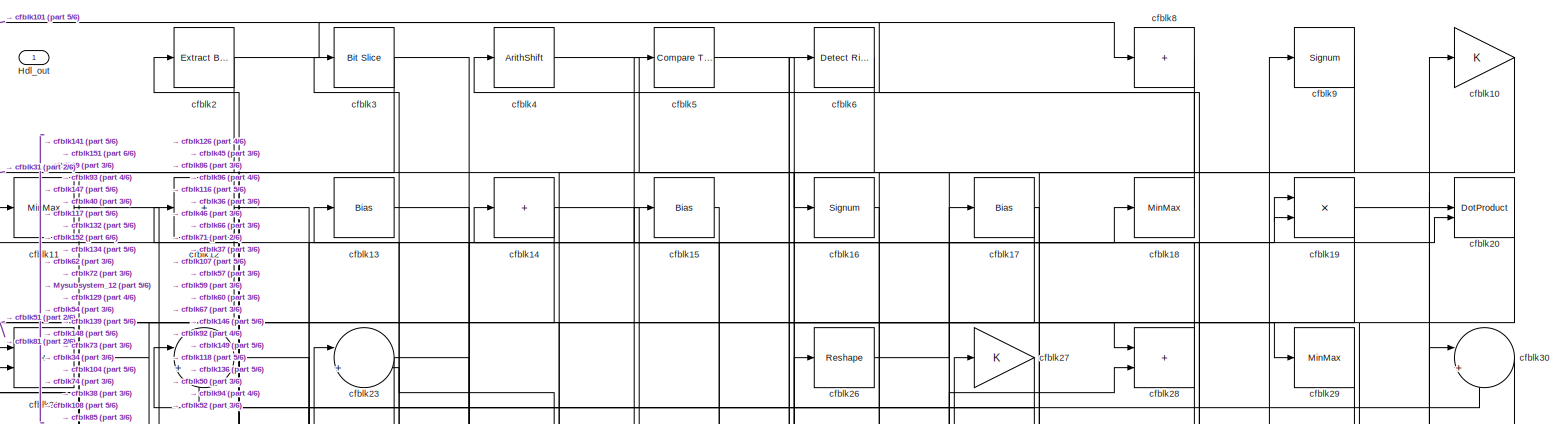
[diagram: root canvas - part 1/6, full width, top band]
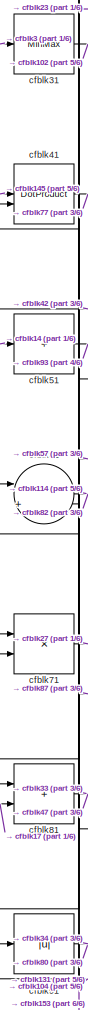
[diagram: root canvas - part 2/6, middle left region]
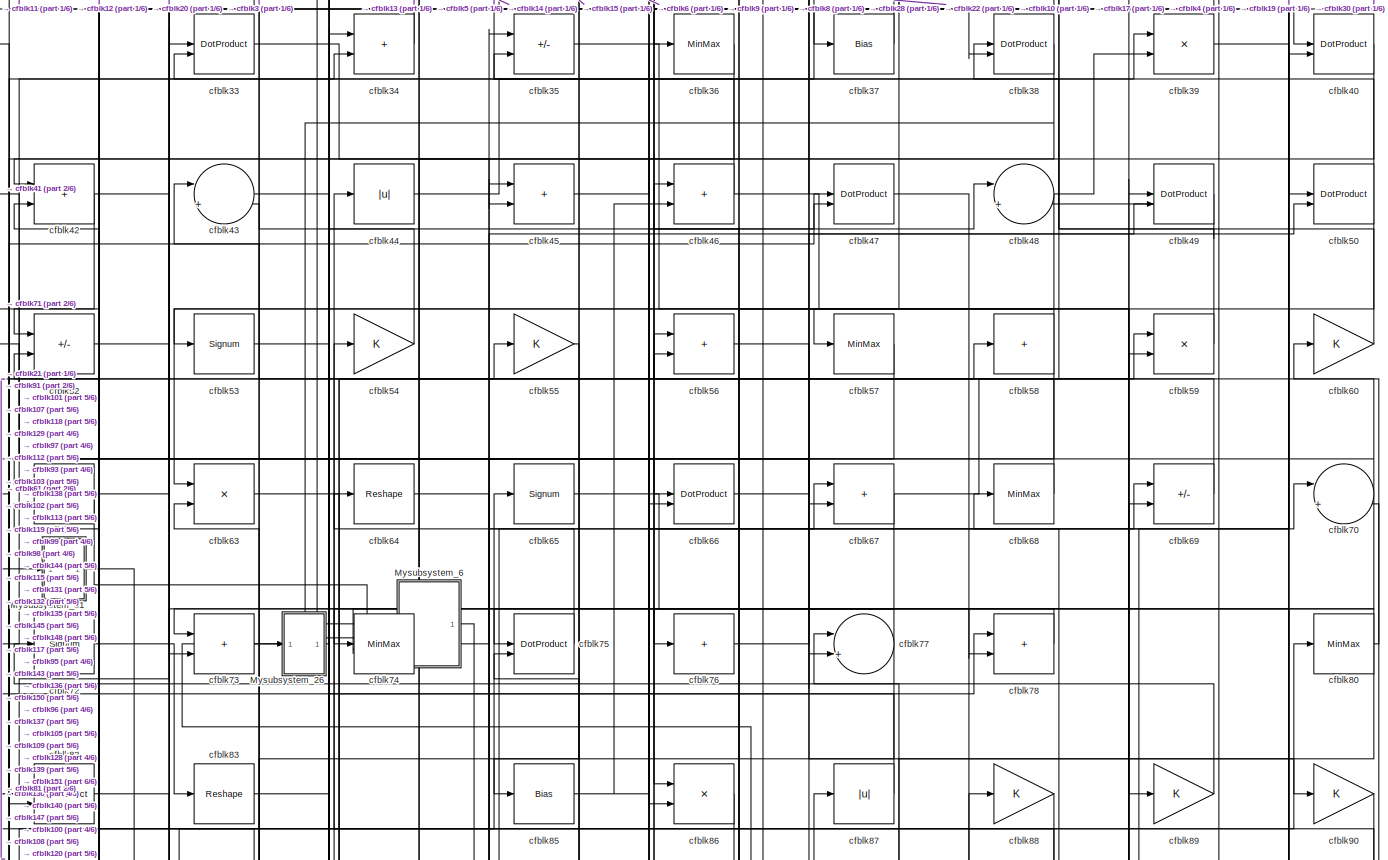
[diagram: root canvas - part 3/6, full width, middle band]
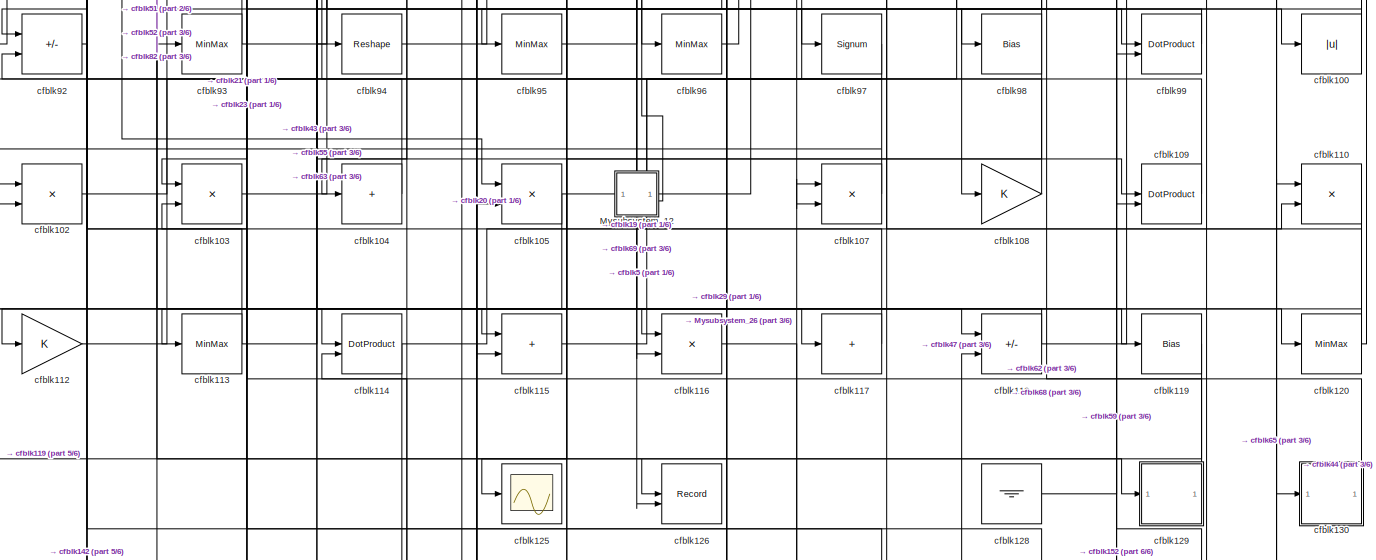
[diagram: root canvas - part 4/6, full width, bottom band]
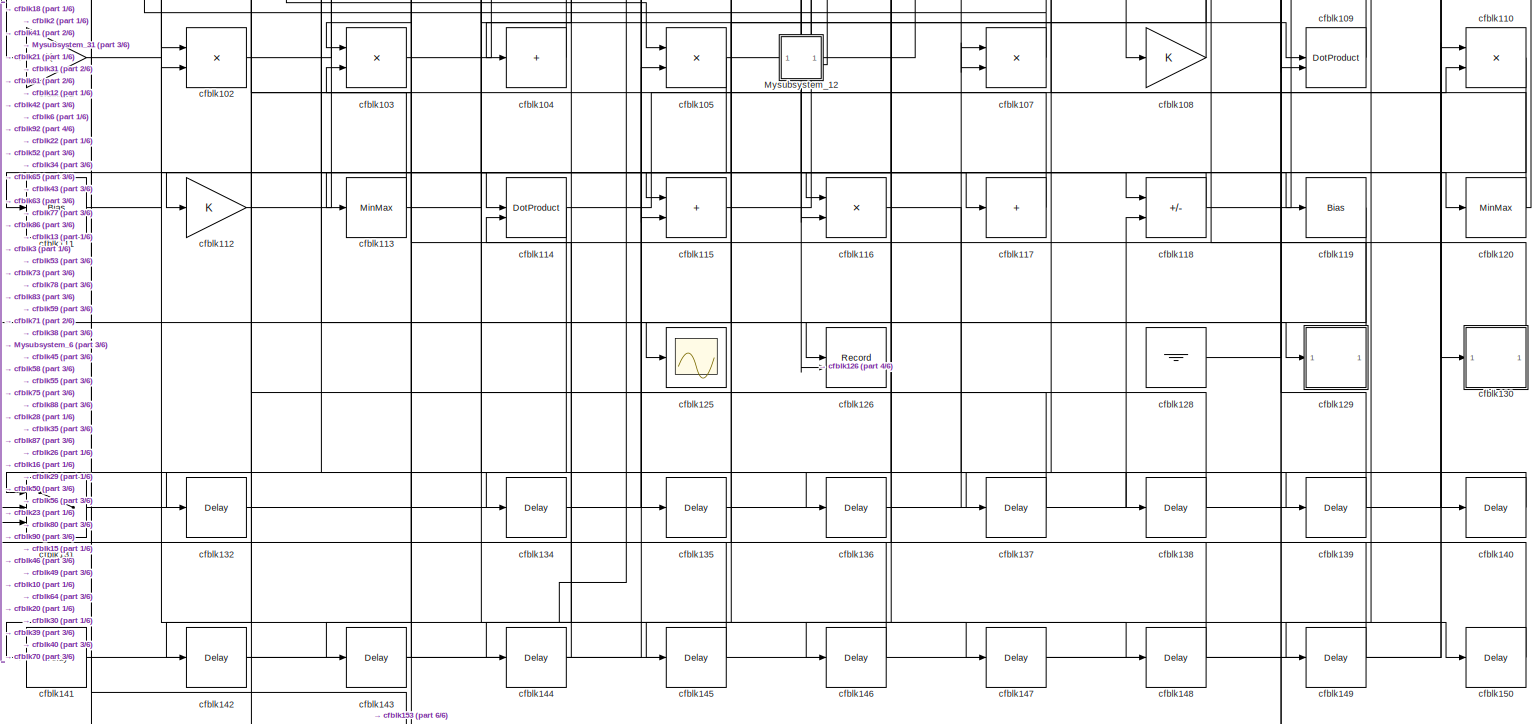
[diagram: root canvas - part 5/6, full width, bottom band]
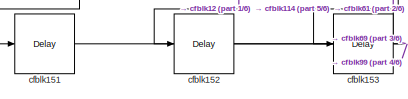
[diagram: root canvas - part 6/6, bottom left region]
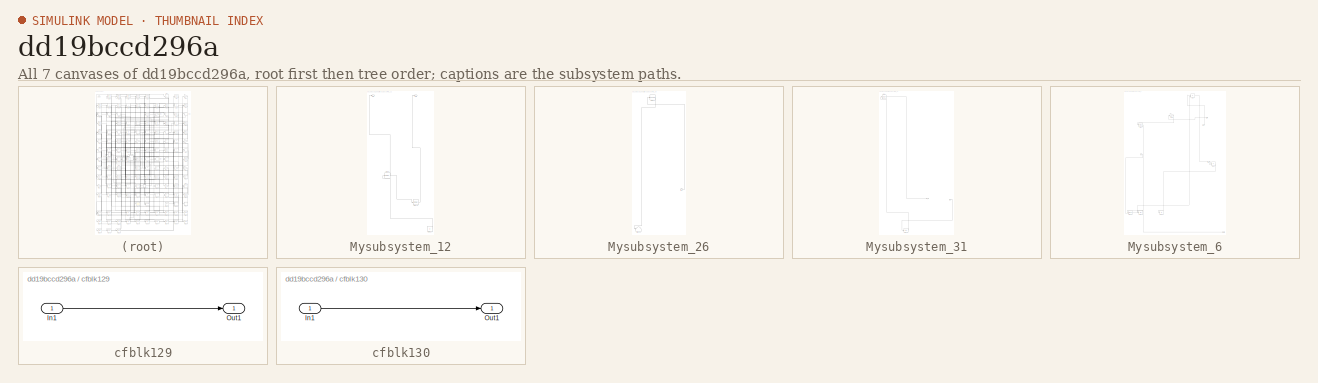
[diagram: thumbnail index - all 7 canvases of the model, root first then tree order]
MODEL slx_dd19bccd296a
KIND model
CONFIG AbsTol = auto
CONFIG EnableMultiTasking = off
CONFIG FixedStep = auto
CONFIG MaxStep = auto
CONFIG MinStep = auto
CONFIG RelTol = 1e-3
CONFIG SampleTimeConstraint = Unconstrained
CONFIG SolverName = VariableStepAuto
CONFIG StartTime = 0.0
CONFIG StopTime = 10.0
BLOCK [Outport] Hdl_out
  OutDataTypeStr = uint8
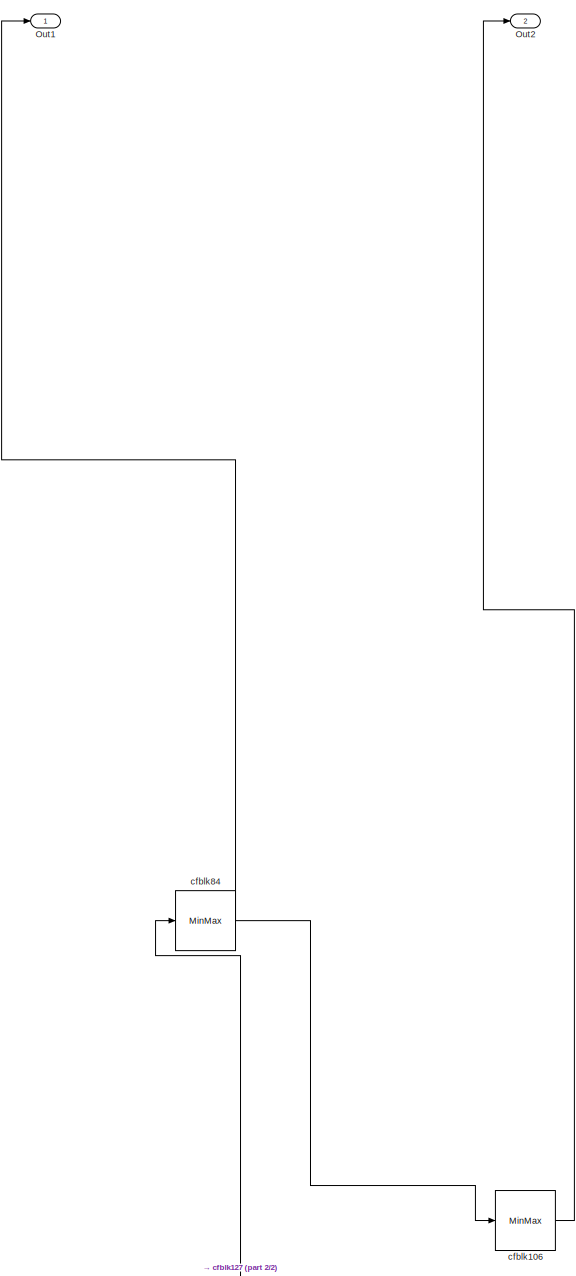
[diagram: Mysubsystem_12 - part 1/2, most of the canvas]
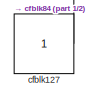
[diagram: Mysubsystem_12 - part 2/2, bottom right region]
BLOCK [SubSystem] Mysubsystem_12
  RTWFcnName = Mysubsystem_12
  RTWFcnNameOpts = User specified
  RTWFileNameOpts = Use function name
  RTWSystemCode = Reusable function
  TreatAsAtomicUnit = on
BLOCK [Outport] Mysubsystem_12/Out1
BLOCK [Outport] Mysubsystem_12/Out2
  Port = 2
BLOCK [MinMax] Mysubsystem_12/cfblk106
BLOCK [Constant] Mysubsystem_12/cfblk127
  SampleTime = -1
BLOCK [MinMax] Mysubsystem_12/cfblk84
BLOCK [SubSystem] Mysubsystem_26
  RTWFcnName = Mysubsystem_26
  RTWFcnNameOpts = User specified
  RTWFileNameOpts = Use function name
  RTWSystemCode = Reusable function
  TreatAsAtomicUnit = on
BLOCK [Inport] Mysubsystem_26/In1
BLOCK [Terminator] Mysubsystem_26/cfblk123
BLOCK [Reshape] Mysubsystem_26/cfblk24
BLOCK [SubSystem] Mysubsystem_31
  RTWFcnName = Mysubsystem_31
  RTWFcnNameOpts = User specified
  RTWFileNameOpts = Use function name
  RTWSystemCode = Reusable function
  TreatAsAtomicUnit = on
BLOCK [Inport] Mysubsystem_31/In1
BLOCK [Reference] Mysubsystem_31/cfblk1  REF=hdlsllib/Logic and Bit
Operations/Compare
To Zero
  SourceBlock = hdlsllib/Logic and Bit\nOperations/Compare\nTo Zero
  SourceType = Compare To Zero
BLOCK [Delay] Mysubsystem_31/cfblk133
  InputPortMap = u0
  SampleTime = 1
BLOCK [Outport] Mysubsystem_31/y
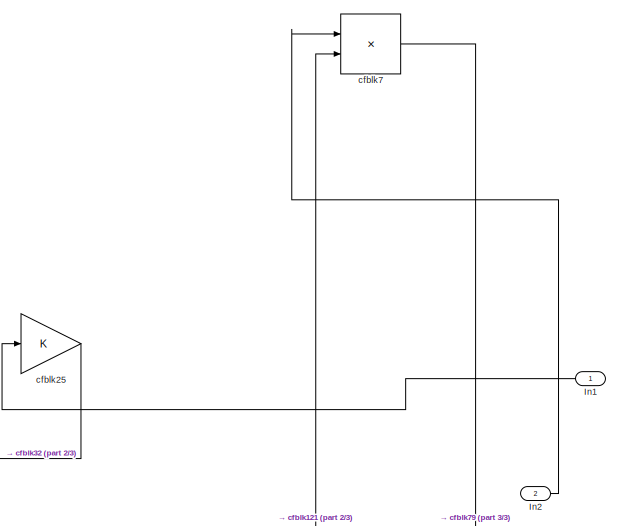
[diagram: Mysubsystem_6 - part 1/3, top center region]
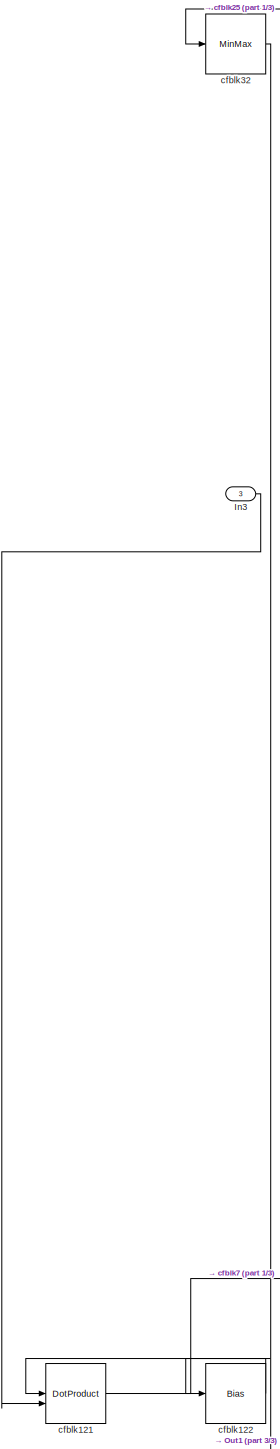
[diagram: Mysubsystem_6 - part 2/3, middle left region]
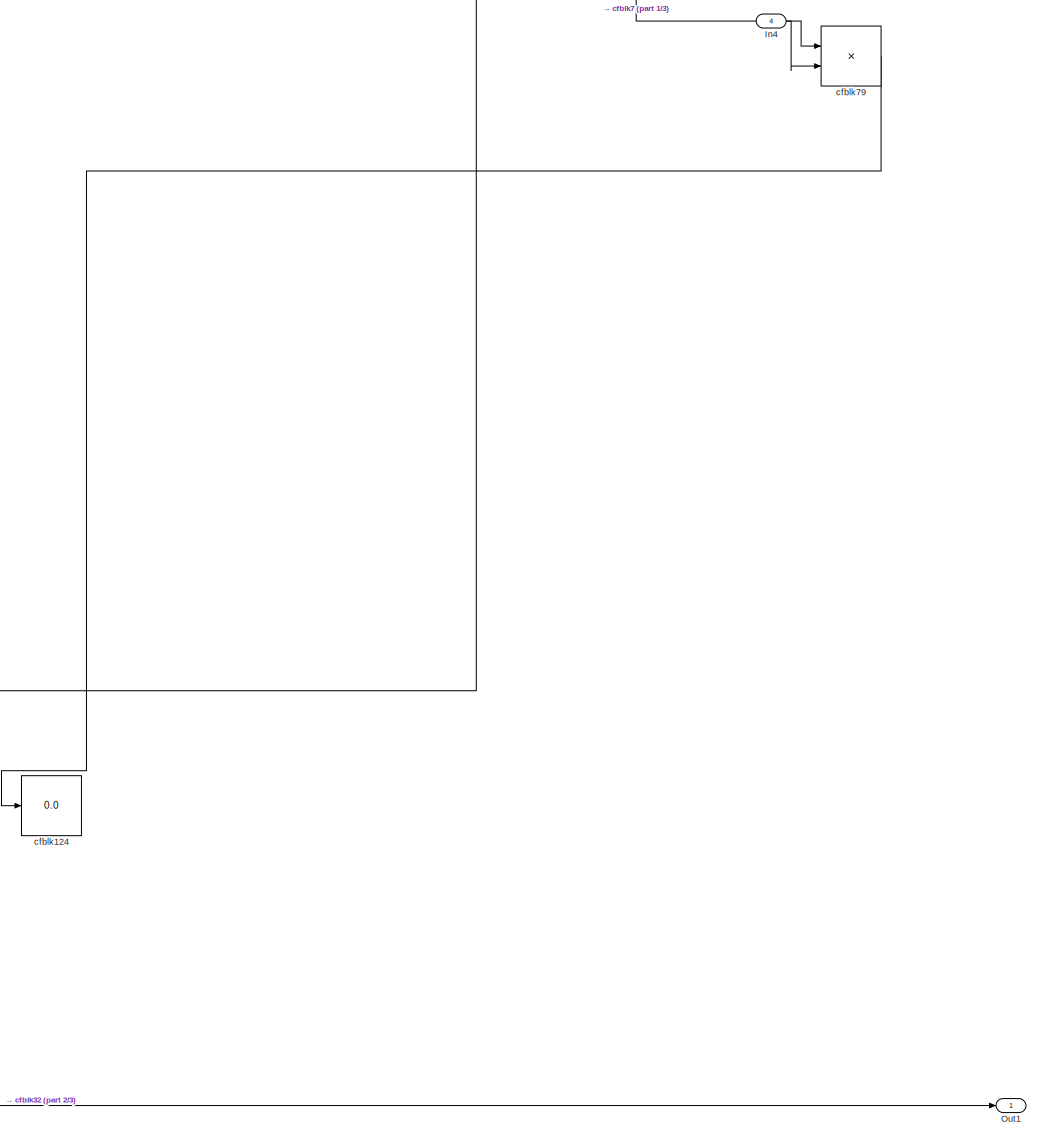
[diagram: Mysubsystem_6 - part 3/3, bottom center region]
BLOCK [SubSystem] Mysubsystem_6
  RTWFcnName = Mysubsystem_6
  RTWFcnNameOpts = User specified
  RTWFileNameOpts = Use function name
  RTWSystemCode = Reusable function
  TreatAsAtomicUnit = on
BLOCK [Inport] Mysubsystem_6/In1
BLOCK [Inport] Mysubsystem_6/In2
  Port = 2
BLOCK [Inport] Mysubsystem_6/In3
  Port = 3
BLOCK [Inport] Mysubsystem_6/In4
  Port = 4
BLOCK [Outport] Mysubsystem_6/Out1
BLOCK [DotProduct] Mysubsystem_6/cfblk121
  OutDataTypeStr = Inherit: Inherit via internal rule
BLOCK [Bias] Mysubsystem_6/cfblk122
  Bias = 0.0
  SaturateOnIntegerOverflow = off
BLOCK [Display] Mysubsystem_6/cfblk124
  Decimation = 1
BLOCK [Gain] Mysubsystem_6/cfblk25
BLOCK [MinMax] Mysubsystem_6/cfblk32
BLOCK [Product] Mysubsystem_6/cfblk7
  Inputs = */
  RndMeth = Zero
  SaturateOnIntegerOverflow = on
BLOCK [Product] Mysubsystem_6/cfblk79
  Inputs = */
  RndMeth = Zero
  SaturateOnIntegerOverflow = on
BLOCK [Gain] cfblk10
  OutDataTypeStr = uint8
BLOCK [Abs] cfblk100
  OutDataTypeStr = uint8
  SaturateOnIntegerOverflow = off
BLOCK [Gain] cfblk101
  OutDataTypeStr = uint8
BLOCK [Product] cfblk102
  Inputs = */
  OutDataTypeStr = uint8
  RndMeth = Zero
  SaturateOnIntegerOverflow = on
BLOCK [Product] cfblk103
  Inputs = */
  OutDataTypeStr = uint8
  RndMeth = Zero
  SaturateOnIntegerOverflow = on
BLOCK [Sum] cfblk104
  IconShape = rectangular
  Inputs = +
  OutDataTypeStr = uint8
BLOCK [Product] cfblk105
  Inputs = */
  OutDataTypeStr = uint8
  RndMeth = Zero
  SaturateOnIntegerOverflow = on
BLOCK [Product] cfblk107
  Inputs = */
  OutDataTypeStr = uint8
  RndMeth = Zero
  SaturateOnIntegerOverflow = on
BLOCK [Gain] cfblk108
  OutDataTypeStr = uint8
BLOCK [DotProduct] cfblk109
  OutDataTypeStr = uint8
BLOCK [MinMax] cfblk11
  OutDataTypeStr = uint8
BLOCK [Product] cfblk110
  Inputs = */
  OutDataTypeStr = uint8
  RndMeth = Zero
  SaturateOnIntegerOverflow = on
BLOCK [Bias] cfblk111
  Bias = 0.0
  SaturateOnIntegerOverflow = off
BLOCK [Gain] cfblk112
  OutDataTypeStr = uint8
BLOCK [MinMax] cfblk113
  OutDataTypeStr = uint8
BLOCK [DotProduct] cfblk114
  OutDataTypeStr = uint8
BLOCK [Sum] cfblk115
  IconShape = rectangular
  OutDataTypeStr = uint8
BLOCK [Product] cfblk116
  Inputs = */
  OutDataTypeStr = uint8
  RndMeth = Zero
  SaturateOnIntegerOverflow = on
BLOCK [Sum] cfblk117
  IconShape = rectangular
  Inputs = +
  OutDataTypeStr = uint8
BLOCK [Sum] cfblk118
  IconShape = rectangular
  Inputs = +-
  OutDataTypeStr = uint8
BLOCK [Bias] cfblk119
  Bias = 0.0
  SaturateOnIntegerOverflow = off
BLOCK [Sum] cfblk12
  IconShape = rectangular
  Inputs = +
  OutDataTypeStr = uint8
BLOCK [MinMax] cfblk120
  OutDataTypeStr = uint8
BLOCK [Scope] cfblk125
  Floating = off
  NumInputPorts = 1
  ScopeSpecificationString = Simulink.scopes.TimeScopeBlockCfg('CurrentConfiguration', extmgr.ConfigurationSet(extmgr.Configuration('Core','General UI',true),extmgr.Configuration('Core','Source UI',true),extmgr.Configuration('Sources','WiredSimulink',true,'DataLoggingVariableName','ScopeData2','DataLoggingSaveFormat','Array','DataLoggingLimitDataPoints',true,'DataLoggingDecimation','1'),extmgr.Configuration('Visuals','Time Do...<+868ch>
BLOCK [Record] cfblk126
  CompatibilityTag = XY
  FileSettingsInternal = {"entries":[{"content":{"excelSettings":{"content":{},"type":"Streamout.ExcelSettings"}},"type":"Streamout.FileSettingStorage","uuid":""}],"packageUris":["http:\/\/schema.mathworks.com\/mf0\/streamout_blocks\/R2020a"],"version":"1.0"}
  Layout = [1 1]
  SignalsInternal = {"entries":[{"content":{"signals":[{"content":{"blockPath":[],"dimensions":[1],"domain":"","lineColor":"#a2142f","plots":[1],"port":1,"signalID":38940,"signalName":"cfblk119"},"type":"RecordBlkView.Signal","uuid":""},{"content":{"blockPath":[],"dimensions":[1],"domain":"","lineColor":"#139fff","plots":[1],"port":2,"signalID":38943,"signalName":"cfblk19"},"type":"RecordBlkView.Signal","uuid":""}]},...<+143ch>
  VisualizationBindings = {"xyplotplugin":{"info":[{"series":[{"bindingParametersList":[{"parameter":"X-Axis","signalID":38940,"signalName":"cfblk119"},{"parameter":"Y-Axis","signalID":38943,"signalName":"cfblk19"}],"seriesID":4646}],"subplotID":1}]}}
  st = -1
BLOCK [Ground] cfblk128
BLOCK [SubSystem] cfblk129
  LibrarySourceBlock = hdlsllib/Ports &\nSubsystems/Subsystem
BLOCK [Inport] cfblk129/In1
BLOCK [Outport] cfblk129/Out1
BLOCK [Bias] cfblk13
  Bias = 0.0
  SaturateOnIntegerOverflow = off
BLOCK [SubSystem] cfblk130
  LibrarySourceBlock = hdlsllib/Ports &\nSubsystems/Subsystem
BLOCK [Inport] cfblk130/In1
BLOCK [Outport] cfblk130/Out1
BLOCK [Switch] cfblk131
  InputSameDT = off
  OutDataTypeStr = uint8
  SaturateOnIntegerOverflow = off
BLOCK [Delay] cfblk132
  InputPortMap = u0
  SampleTime = 1
BLOCK [Delay] cfblk134
  InputPortMap = u0
  SampleTime = 1
BLOCK [Delay] cfblk135
  InputPortMap = u0
  SampleTime = 1
BLOCK [Delay] cfblk136
  InputPortMap = u0
  SampleTime = 1
BLOCK [Delay] cfblk137
  InputPortMap = u0
  SampleTime = 1
BLOCK [Delay] cfblk138
  InputPortMap = u0
  SampleTime = 1
BLOCK [Delay] cfblk139
  InputPortMap = u0
  SampleTime = 1
BLOCK [Sum] cfblk14
  IconShape = rectangular
  Inputs = +
  OutDataTypeStr = uint8
BLOCK [Delay] cfblk140
  InputPortMap = u0
  SampleTime = 1
BLOCK [Delay] cfblk141
  InputPortMap = u0
  SampleTime = 1
BLOCK [Delay] cfblk142
  InputPortMap = u0
  SampleTime = 1
BLOCK [Delay] cfblk143
  InputPortMap = u0
  SampleTime = 1
BLOCK [Delay] cfblk144
  InputPortMap = u0
  SampleTime = 1
BLOCK [Delay] cfblk145
  InputPortMap = u0
  SampleTime = 1
BLOCK [Delay] cfblk146
  InputPortMap = u0
  SampleTime = 1
BLOCK [Delay] cfblk147
  InputPortMap = u0
  SampleTime = 1
BLOCK [Delay] cfblk148
  InputPortMap = u0
  SampleTime = 1
BLOCK [Delay] cfblk149
  InputPortMap = u0
  SampleTime = 1
BLOCK [Bias] cfblk15
  Bias = 0.0
  SaturateOnIntegerOverflow = off
BLOCK [Delay] cfblk150
  InputPortMap = u0
  SampleTime = 1
BLOCK [Delay] cfblk151
  InputPortMap = u0
  SampleTime = 1
BLOCK [Delay] cfblk152
  InputPortMap = u0
  SampleTime = 1
BLOCK [Delay] cfblk153
  InputPortMap = u0
  SampleTime = 1
BLOCK [Signum] cfblk16
BLOCK [Bias] cfblk17
  Bias = 0.0
  SaturateOnIntegerOverflow = off
BLOCK [MinMax] cfblk18
  OutDataTypeStr = uint8
BLOCK [Product] cfblk19
  Inputs = */
  OutDataTypeStr = uint8
  RndMeth = Zero
  SaturateOnIntegerOverflow = on
BLOCK [Reference] cfblk2  REF=simulink/Logic and Bit
Operations/Extract Bits
  LibrarySourceBlock = hdlsllib/Logic and Bit\nOperations/Extract Bits
  SourceBlock = simulink/Logic and Bit\nOperations/Extract Bits
  SourceType = Extract Bits
BLOCK [DotProduct] cfblk20
  OutDataTypeStr = uint8
BLOCK [Sum] cfblk21
  IconShape = rectangular
  OutDataTypeStr = uint8
BLOCK [Sum] cfblk22
  Inputs = |++
  OutDataTypeStr = uint8
BLOCK [Sum] cfblk23
  Inputs = |++
  OutDataTypeStr = uint8
BLOCK [Reshape] cfblk26
BLOCK [Gain] cfblk27
  OutDataTypeStr = uint8
BLOCK [Sum] cfblk28
  IconShape = rectangular
  OutDataTypeStr = uint8
BLOCK [MinMax] cfblk29
  OutDataTypeStr = uint8
BLOCK [Reference] cfblk3  REF=hdlsllib/Logic and Bit
Operations/Bit Slice
  SourceBlock = hdlsllib/Logic and Bit\nOperations/Bit Slice
  SourceType = Bit Slice
BLOCK [Sum] cfblk30
  Inputs = |++
  OutDataTypeStr = uint8
BLOCK [MinMax] cfblk31
  OutDataTypeStr = uint8
BLOCK [DotProduct] cfblk33
  OutDataTypeStr = uint8
BLOCK [Sum] cfblk34
  IconShape = rectangular
  OutDataTypeStr = uint8
BLOCK [Sum] cfblk35
  IconShape = rectangular
  Inputs = +-
  OutDataTypeStr = uint8
BLOCK [MinMax] cfblk36
  OutDataTypeStr = uint8
BLOCK [Bias] cfblk37
  Bias = 0.0
  SaturateOnIntegerOverflow = off
BLOCK [DotProduct] cfblk38
  OutDataTypeStr = uint8
BLOCK [Product] cfblk39
  Inputs = */
  OutDataTypeStr = uint8
  RndMeth = Zero
  SaturateOnIntegerOverflow = on
BLOCK [ArithShift] cfblk4
  BitShiftNumber = 8
  InputPortMap = u0
BLOCK [DotProduct] cfblk40
  OutDataTypeStr = uint8
BLOCK [DotProduct] cfblk41
  OutDataTypeStr = uint8
BLOCK [Sum] cfblk42
  IconShape = rectangular
  OutDataTypeStr = uint8
BLOCK [Sum] cfblk43
  Inputs = |++
  OutDataTypeStr = uint8
BLOCK [Abs] cfblk44
  OutDataTypeStr = uint8
  SaturateOnIntegerOverflow = off
BLOCK [Sum] cfblk45
  IconShape = rectangular
  OutDataTypeStr = uint8
BLOCK [Sum] cfblk46
  IconShape = rectangular
  OutDataTypeStr = uint8
BLOCK [DotProduct] cfblk47
  OutDataTypeStr = uint8
BLOCK [Sum] cfblk48
  Inputs = |++
  OutDataTypeStr = uint8
BLOCK [DotProduct] cfblk49
  OutDataTypeStr = uint8
BLOCK [Reference] cfblk5  REF=hdlsllib/Logic and Bit
Operations/Compare
To Constant
  SourceBlock = hdlsllib/Logic and Bit\nOperations/Compare\nTo Constant
  SourceType = Compare To Constant
BLOCK [DotProduct] cfblk50
  OutDataTypeStr = uint8
BLOCK [Sum] cfblk51
  IconShape = rectangular
  Inputs = +
  OutDataTypeStr = uint8
BLOCK [Sum] cfblk52
  IconShape = rectangular
  Inputs = +-
  OutDataTypeStr = uint8
BLOCK [Signum] cfblk53
BLOCK [Gain] cfblk54
  OutDataTypeStr = uint8
BLOCK [Gain] cfblk55
  OutDataTypeStr = uint8
BLOCK [Sum] cfblk56
  IconShape = rectangular
  OutDataTypeStr = uint8
BLOCK [MinMax] cfblk57
  OutDataTypeStr = uint8
BLOCK [Sum] cfblk58
  IconShape = rectangular
  Inputs = +
  OutDataTypeStr = uint8
BLOCK [Product] cfblk59
  Inputs = */
  OutDataTypeStr = uint8
  RndMeth = Zero
  SaturateOnIntegerOverflow = on
BLOCK [Reference] cfblk6  REF=hdlsllib/Logic and Bit
Operations/Detect Rise
Positive
  SourceBlock = hdlsllib/Logic and Bit\nOperations/Detect Rise\nPositive
  SourceType = Detect Rise Positive
BLOCK [Gain] cfblk60
  OutDataTypeStr = uint8
BLOCK [Sum] cfblk61
  Inputs = |++
  OutDataTypeStr = uint8
BLOCK [Product] cfblk62
  Inputs = */
  OutDataTypeStr = uint8
  RndMeth = Zero
  SaturateOnIntegerOverflow = on
BLOCK [Product] cfblk63
  Inputs = */
  OutDataTypeStr = uint8
  RndMeth = Zero
  SaturateOnIntegerOverflow = on
BLOCK [Reshape] cfblk64
BLOCK [Signum] cfblk65
BLOCK [DotProduct] cfblk66
  OutDataTypeStr = uint8
BLOCK [Sum] cfblk67
  IconShape = rectangular
  OutDataTypeStr = uint8
BLOCK [MinMax] cfblk68
  OutDataTypeStr = uint8
BLOCK [Sum] cfblk69
  IconShape = rectangular
  Inputs = +-
  OutDataTypeStr = uint8
BLOCK [Sum] cfblk70
  Inputs = |++
  OutDataTypeStr = uint8
BLOCK [Product] cfblk71
  Inputs = */
  OutDataTypeStr = uint8
  RndMeth = Zero
  SaturateOnIntegerOverflow = on
BLOCK [Signum] cfblk72
BLOCK [Sum] cfblk73
  IconShape = rectangular
  OutDataTypeStr = uint8
BLOCK [MinMax] cfblk74
  OutDataTypeStr = uint8
BLOCK [DotProduct] cfblk75
  OutDataTypeStr = uint8
BLOCK [Sum] cfblk76
  IconShape = rectangular
  Inputs = +
  OutDataTypeStr = uint8
BLOCK [Sum] cfblk77
  Inputs = |++
  OutDataTypeStr = uint8
BLOCK [Sum] cfblk78
  IconShape = rectangular
  OutDataTypeStr = uint8
BLOCK [Sum] cfblk8
  IconShape = rectangular
  Inputs = +
  OutDataTypeStr = uint8
BLOCK [MinMax] cfblk80
  OutDataTypeStr = uint8
BLOCK [Sum] cfblk81
  IconShape = rectangular
  OutDataTypeStr = uint8
BLOCK [DotProduct] cfblk82
  OutDataTypeStr = uint8
BLOCK [Reshape] cfblk83
BLOCK [Bias] cfblk85
  Bias = 0.0
  SaturateOnIntegerOverflow = off
BLOCK [Product] cfblk86
  Inputs = */
  OutDataTypeStr = uint8
  RndMeth = Zero
  SaturateOnIntegerOverflow = on
BLOCK [Abs] cfblk87
  OutDataTypeStr = uint8
  SaturateOnIntegerOverflow = off
BLOCK [Gain] cfblk88
  OutDataTypeStr = uint8
BLOCK [Gain] cfblk89
  OutDataTypeStr = uint8
BLOCK [Signum] cfblk9
BLOCK [Gain] cfblk90
  OutDataTypeStr = uint8
BLOCK [Abs] cfblk91
  OutDataTypeStr = uint8
  SaturateOnIntegerOverflow = off
BLOCK [Sum] cfblk92
  IconShape = rectangular
  Inputs = +-
  OutDataTypeStr = uint8
BLOCK [MinMax] cfblk93
  OutDataTypeStr = uint8
BLOCK [Reshape] cfblk94
BLOCK [MinMax] cfblk95
  OutDataTypeStr = uint8
BLOCK [MinMax] cfblk96
  OutDataTypeStr = uint8
BLOCK [Signum] cfblk97
BLOCK [Bias] cfblk98
  Bias = 0.0
  SaturateOnIntegerOverflow = off
BLOCK [DotProduct] cfblk99
  OutDataTypeStr = uint8
LINE Mysubsystem_12/cfblk106:1 -> Mysubsystem_12/Out2:1
LINE Mysubsystem_12/cfblk127:1 -> Mysubsystem_12/cfblk84:1
NET Mysubsystem_12/cfblk84:1 -> Mysubsystem_12/Out1:1, Mysubsystem_12/cfblk106:1
LINE Mysubsystem_12:1 -> cfblk23:1
LINE Mysubsystem_12:2 -> cfblk26:1
LINE Mysubsystem_26/In1:1 -> Mysubsystem_26/cfblk24:1
LINE Mysubsystem_26/cfblk24:1 -> Mysubsystem_26/cfblk123:1
LINE Mysubsystem_31/In1:1 -> Mysubsystem_31/cfblk133:1
LINE Mysubsystem_31/cfblk133:1 -> Mysubsystem_31/cfblk1:1
LINE Mysubsystem_31/cfblk1:1 -> Mysubsystem_31/y:1
LINE Mysubsystem_31:1 -> cfblk105:1
LINE Mysubsystem_6/In1:1 -> Mysubsystem_6/cfblk25:1
LINE Mysubsystem_6/In2:1 -> Mysubsystem_6/cfblk7:1
LINE Mysubsystem_6/In3:1 -> Mysubsystem_6/cfblk121:2
LINE Mysubsystem_6/In4:1 -> Mysubsystem_6/cfblk79:2
LINE Mysubsystem_6/cfblk121:1 -> Mysubsystem_6/cfblk7:2
LINE Mysubsystem_6/cfblk122:1 -> Mysubsystem_6/cfblk121:1
LINE Mysubsystem_6/cfblk25:1 -> Mysubsystem_6/cfblk32:1
NET Mysubsystem_6/cfblk32:1 -> Mysubsystem_6/Out1:1, Mysubsystem_6/cfblk122:1
LINE Mysubsystem_6/cfblk79:1 -> Mysubsystem_6/cfblk124:1
LINE Mysubsystem_6/cfblk7:1 -> Mysubsystem_6/cfblk79:1
LINE Mysubsystem_6:1 -> cfblk150:1
LINE cfblk100:1 -> cfblk44:1
LINE cfblk101:1 -> cfblk58:1
LINE cfblk102:1 -> cfblk34:1
LINE cfblk103:1 -> cfblk59:1
LINE cfblk104:1 -> cfblk71:1
NET cfblk105:1 -> cfblk113:1, cfblk88:1
NET cfblk107:1 -> Mysubsystem_31:1, cfblk2:1
NET cfblk108:1 -> cfblk15:1, cfblk35:2
LINE cfblk109:1 -> cfblk64:1
NET cfblk10:1 -> cfblk104:1, cfblk107:2, cfblk37:1
LINE cfblk110:1 -> cfblk112:1
LINE cfblk111:1 -> cfblk102:2
LINE cfblk112:1 -> cfblk65:1
NET cfblk113:1 -> cfblk52:2, cfblk78:1
NET cfblk114:1 -> cfblk110:2, cfblk153:1
LINE cfblk115:1 -> cfblk87:1
LINE cfblk116:1 -> cfblk138:1
LINE cfblk117:1 -> cfblk12:1
NET cfblk118:1 -> cfblk10:1, cfblk111:1
NET cfblk119:1 -> cfblk126:1, cfblk131:3
LINE cfblk11:1 -> cfblk40:1
NET cfblk120:1 -> cfblk70:2, cfblk77:1
LINE cfblk128:1 -> cfblk59:2
LINE cfblk129/In1:1 -> cfblk129/Out1:1
LINE cfblk129:1 -> cfblk23:2
NET cfblk12:1 -> cfblk151:1, cfblk152:1, cfblk66:1
LINE cfblk130/In1:1 -> cfblk130/Out1:1
LINE cfblk130:1 -> cfblk68:1
NET cfblk131:1 -> cfblk41:2, cfblk45:1
LINE cfblk132:1 -> cfblk35:1
LINE cfblk134:1 -> cfblk107:1
LINE cfblk135:1 -> cfblk118:2
LINE cfblk136:1 -> cfblk30:1
LINE cfblk137:1 -> cfblk42:2
LINE cfblk138:1 -> cfblk63:2
LINE cfblk139:1 -> cfblk49:1
LINE cfblk13:1 -> cfblk139:1
LINE cfblk140:1 -> cfblk131:1
LINE cfblk141:1 -> cfblk105:2
LINE cfblk142:1 -> cfblk110:1
LINE cfblk143:1 -> cfblk43:1
LINE cfblk144:1 -> cfblk114:2
LINE cfblk145:1 -> cfblk41:1
LINE cfblk146:1 -> cfblk131:2
LINE cfblk147:1 -> cfblk40:2
LINE cfblk148:1 -> cfblk75:2
LINE cfblk149:1 -> cfblk103:2
NET cfblk14:1 -> cfblk38:2, cfblk51:1
LINE cfblk150:1 -> cfblk56:2
LINE cfblk151:1 -> cfblk69:2
LINE cfblk152:1 -> cfblk99:2
LINE cfblk153:1 -> cfblk61:2
LINE cfblk15:1 -> cfblk85:1
LINE cfblk16:1 -> cfblk116:1
NET cfblk17:1 -> cfblk57:1, cfblk81:2
LINE cfblk18:1 -> cfblk101:1
NET cfblk19:1 -> cfblk126:2, cfblk50:1
NET cfblk20:1 -> cfblk149:1, cfblk74:1
NET cfblk21:1 -> cfblk147:1, cfblk29:1
LINE cfblk22:1 -> cfblk134:1
NET cfblk23:1 -> cfblk81:1, cfblk94:1
LINE cfblk26:1 -> cfblk18:1
LINE cfblk27:1 -> cfblk22:2
NET cfblk28:1 -> cfblk116:2, cfblk14:1
NET cfblk29:1 -> cfblk146:1, cfblk92:1
NET cfblk2:1 -> cfblk141:1, cfblk8:1
LINE cfblk30:1 -> cfblk52:1
LINE cfblk31:1 -> cfblk102:1
LINE cfblk33:1 -> cfblk45:2
LINE cfblk34:1 -> cfblk13:1
NET cfblk35:1 -> cfblk117:1, cfblk89:1
LINE cfblk36:1 -> cfblk42:1
LINE cfblk37:1 -> cfblk22:1
NET cfblk38:1 -> Mysubsystem_6:2, cfblk144:1
LINE cfblk39:1 -> cfblk140:1
NET cfblk3:1 -> cfblk148:1, cfblk31:1
NET cfblk40:1 -> cfblk82:2, cfblk86:2
LINE cfblk41:1 -> cfblk77:2
NET cfblk42:1 -> cfblk66:2, cfblk71:2
NET cfblk43:1 -> cfblk47:2, cfblk67:2, cfblk99:1
LINE cfblk44:1 -> cfblk39:1
LINE cfblk45:1 -> cfblk6:1
NET cfblk46:1 -> cfblk109:2, cfblk28:2, cfblk5:1
LINE cfblk47:1 -> cfblk100:1
NET cfblk48:1 -> cfblk39:2, cfblk63:1
LINE cfblk49:1 -> cfblk48:2
LINE cfblk4:1 -> cfblk16:1
NET cfblk50:1 -> cfblk136:1, cfblk33:2
LINE cfblk51:1 -> cfblk93:1
NET cfblk52:1 -> cfblk118:1, cfblk97:1
LINE cfblk53:1 -> cfblk120:1
LINE cfblk54:1 -> cfblk3:1
LINE cfblk55:1 -> cfblk145:1
LINE cfblk56:1 -> cfblk90:1
LINE cfblk57:1 -> cfblk91:1
NET cfblk58:1 -> cfblk115:2, cfblk53:1
NET cfblk59:1 -> Mysubsystem_6:1, cfblk11:1
NET cfblk5:1 -> cfblk28:1, cfblk96:1
LINE cfblk60:1 -> cfblk4:1
NET cfblk61:1 -> cfblk114:1, cfblk82:1
NET cfblk62:1 -> Mysubsystem_6:3, cfblk30:2
LINE cfblk63:1 -> cfblk98:1
LINE cfblk64:1 -> cfblk135:1
LINE cfblk65:1 -> cfblk130:1
LINE cfblk66:1 -> cfblk17:1
NET cfblk67:1 -> cfblk73:2, cfblk9:1
LINE cfblk68:1 -> cfblk43:2
NET cfblk69:1 -> cfblk21:1, cfblk56:1
LINE cfblk6:1 -> cfblk132:1
NET cfblk70:1 -> Mysubsystem_6:4, cfblk38:1, cfblk46:1, cfblk62:1, cfblk78:2
LINE cfblk71:1 -> cfblk27:1
NET cfblk72:1 -> cfblk20:2, cfblk83:1
NET cfblk73:1 -> cfblk109:1, cfblk19:1, cfblk19:2
NET cfblk74:1 -> cfblk50:2, cfblk70:1
LINE cfblk75:1 -> cfblk54:1
LINE cfblk76:1 -> cfblk49:2
NET cfblk77:1 -> cfblk103:1, cfblk76:1
LINE cfblk78:1 -> cfblk75:1
NET cfblk80:1 -> cfblk137:1, cfblk60:1, cfblk73:1
NET cfblk81:1 -> cfblk33:1, cfblk47:1
LINE cfblk82:1 -> cfblk129:1
LINE cfblk83:1 -> cfblk119:1
NET cfblk85:1 -> cfblk46:2, cfblk48:1, cfblk67:1
LINE cfblk86:1 -> cfblk143:1
LINE cfblk87:1 -> cfblk61:1
LINE cfblk88:1 -> cfblk115:1
LINE cfblk89:1 -> cfblk72:1
LINE cfblk8:1 -> cfblk36:1
LINE cfblk90:1 -> cfblk108:1
NET cfblk91:1 -> cfblk34:2, cfblk80:1
LINE cfblk92:1 -> cfblk142:1
NET cfblk93:1 -> cfblk21:2, cfblk55:1
LINE cfblk94:1 -> cfblk20:1
LINE cfblk95:1 -> cfblk69:1
LINE cfblk96:1 -> Mysubsystem_26:1
LINE cfblk97:1 -> cfblk92:2
NET cfblk98:1 -> cfblk125:1, cfblk62:2
LINE cfblk99:1 -> cfblk95:1
LINE cfblk9:1 -> cfblk86:1
note: NET lines group one-source signal fan-out (src -> all destinations, sorted); 1:1 wires keep LINE
